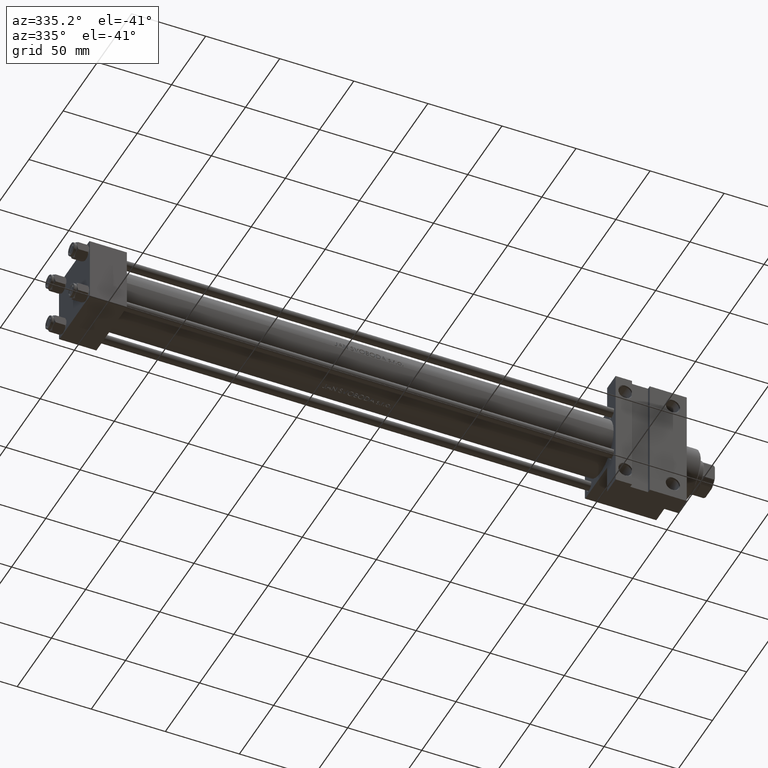
[diagram: clean part render]
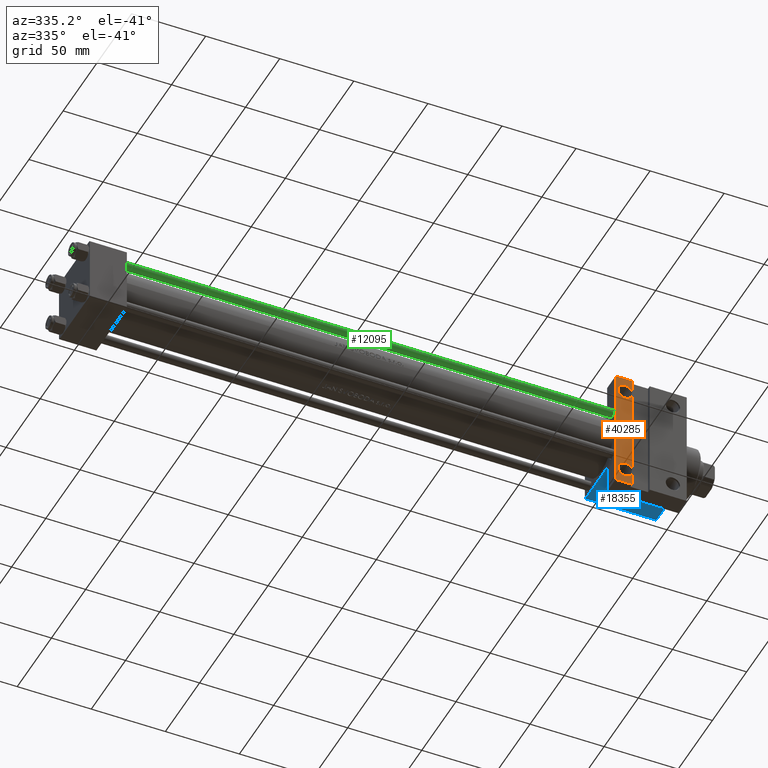
[diagram: same view with three faces highlighted in distinct colors, each labeled with its STEP entity id]
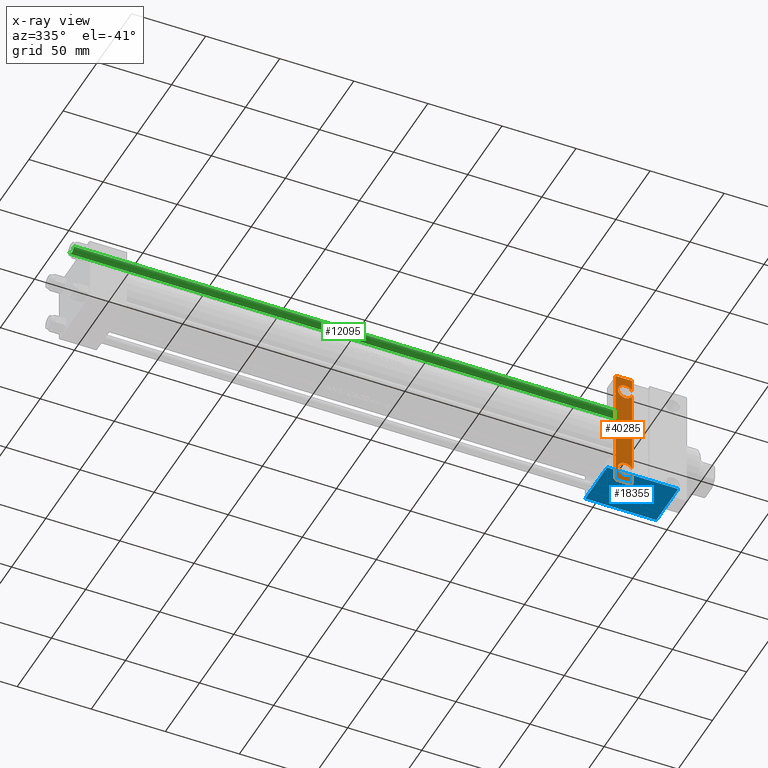
[diagram: x-ray of the same camera — body ghosted, the three highlighted faces saturated]
A machine part, auxiliary view with three faces highlighted in distinct colors.
The next image is the same camera in x-ray (body ghosted, the three faces saturated) — at least one of them is partly hidden behind the body in this view.
Their STEP definitions:

[orange] entity #40285 — the highlighted planar face has unit normal (0, -1, -0).
#344 = DIRECTION ( 'NONE',  ( -0.000000000000000000, -7.709882115452476934E-17, 1.000000000000000000 ) ) ;
#741 = DIRECTION ( 'NONE',  ( 1.000000000000000000, 0.000000000000000000, 0.000000000000000000 ) ) ;
#1150 = CARTESIAN_POINT ( 'NONE',  ( 355.0000000000000568, 22.50000000000000355, -22.49999999999999645 ) ) ;
#1295 = VERTEX_POINT ( 'NONE', #21903 ) ;
#1570 = LINE ( 'NONE', #41395, #13099 ) ;
#1645 = VERTEX_POINT ( 'NONE', #47209 ) ;
#2005 = ORIENTED_EDGE ( 'NONE', *, *, #6339, .F. ) ;
#2875 = CARTESIAN_POINT ( 'NONE',  ( 355.0000000000000568, -42.00000000000003553, -22.50000000000000000 ) ) ;
#4345 = LINE ( 'NONE', #33801, #13120 ) ;
#4589 = VERTEX_POINT ( 'NONE', #41727 ) ;
#4851 = CARTESIAN_POINT ( 'NONE',  ( 361.4999999999999432, 31.50000000000002842, -22.49999999999999645 ) ) ;
#5324 = VERTEX_POINT ( 'NONE', #12697 ) ;
#5479 = LINE ( 'NONE', #1150, #41852 ) ;
#6167 = CARTESIAN_POINT ( 'NONE',  ( 356.5005000000000450, 31.50000000000002842, -22.49999999999999645 ) ) ;
#6339 = EDGE_CURVE ( 'NONE', #28362, #1645, #1570, .T. ) ;
#7105 = EDGE_CURVE ( 'NONE', #4589, #1295, #10592, .T. ) ;
#7221 = VERTEX_POINT ( 'NONE', #16346 ) ;
#7401 = FACE_OUTER_BOUND ( 'NONE', #30299, .T. ) ;
#8372 = DIRECTION ( 'NONE',  ( 0.000000000000000000, -1.000000000000000000, -7.709882115452476934E-17 ) ) ;
#9455 = AXIS2_PLACEMENT_3D ( 'NONE', #12513, #41981, #13483 ) ;
#9530 = EDGE_CURVE ( 'NONE', #30047, #5324, #42513, .T. ) ;
#10109 = DIRECTION ( 'NONE',  ( -1.000000000000000000, 2.891205793294679312E-16, -0.000000000000000000 ) ) ;
#10251 = CIRCLE ( 'NONE', #13325, 4.999499999999878597 ) ;
#10592 = LINE ( 'NONE', #25293, #27720 ) ;
#10672 = EDGE_CURVE ( 'NONE', #33859, #1295, #4345, .T. ) ;
#11432 = DIRECTION ( 'NONE',  ( 0.000000000000000000, 1.000000000000000000, 0.000000000000000000 ) ) ;
#12250 = ORIENTED_EDGE ( 'NONE', *, *, #7105, .F. ) ;
#12335 = DIRECTION ( 'NONE',  ( -0.000000000000000000, -7.709882115452476934E-17, 1.000000000000000000 ) ) ;
#12421 = ORIENTED_EDGE ( 'NONE', *, *, #10672, .T. ) ;
#12513 = CARTESIAN_POINT ( 'NONE',  ( 361.4999999999999432, -31.50000000000002842, -22.50000000000000000 ) ) ;
#12697 = CARTESIAN_POINT ( 'NONE',  ( 366.0000000000000568, -33.67830214846285486, -22.50000000000000000 ) ) ;
#13099 = VECTOR ( 'NONE', #19883, 1000.000000000000000 ) ;
#13120 = VECTOR ( 'NONE', #741, 1000.000000000000000 ) ;
#13325 = AXIS2_PLACEMENT_3D ( 'NONE', #4851, #12335, #23415 ) ;
#13483 = DIRECTION ( 'NONE',  ( 0.000000000000000000, 1.000000000000000000, 0.000000000000000000 ) ) ;
#14465 = EDGE_CURVE ( 'NONE', #7221, #5324, #18588, .T. ) ;
#14977 = CARTESIAN_POINT ( 'NONE',  ( 355.0000000000000568, -42.00000000000003553, -22.50000000000000000 ) ) ;
#15332 = DIRECTION ( 'NONE',  ( 0.000000000000000000, 1.000000000000000000, 0.000000000000000000 ) ) ;
#15633 = ORIENTED_EDGE ( 'NONE', *, *, #17543, .T. ) ;
#16346 = CARTESIAN_POINT ( 'NONE',  ( 356.5005000000000450, -31.50000000000002842, -22.50000000000000000 ) ) ;
#17543 = EDGE_CURVE ( 'NONE', #19259, #1645, #10251, .T. ) ;
#17835 = EDGE_CURVE ( 'NONE', #28362, #7221, #43381, .T. ) ;
#18588 = CIRCLE ( 'NONE', #45574, 4.999499999999878597 ) ;
#18727 = CARTESIAN_POINT ( 'NONE',  ( 403.0000000000000000, 22.50000000000000355, -22.49999999999999645 ) ) ;
#19259 = VERTEX_POINT ( 'NONE', #6167 ) ;
#19532 = CIRCLE ( 'NONE', #23386, 4.999499999999878597 ) ;
#19883 = DIRECTION ( 'NONE',  ( 0.000000000000000000, 1.000000000000000000, 0.000000000000000000 ) ) ;
#19920 = ORIENTED_EDGE ( 'NONE', *, *, #34216, .F. ) ;
#20513 = CARTESIAN_POINT ( 'NONE',  ( 366.0000000000000568, -41.99999999999997868, -22.50000000000000000 ) ) ;
#21663 = CARTESIAN_POINT ( 'NONE',  ( 355.0000000000000000, 41.99999999999996447, -22.50000000000000000 ) ) ;
#21903 = CARTESIAN_POINT ( 'NONE',  ( 366.0000000000000568, 41.99999999999996447, -22.50000000000000000 ) ) ;
#22109 = DIRECTION ( 'NONE',  ( 0.000000000000000000, 7.709882115452476934E-17, -1.000000000000000000 ) ) ;
#23386 = AXIS2_PLACEMENT_3D ( 'NONE', #26612, #344, #11432 ) ;
#23415 = DIRECTION ( 'NONE',  ( 0.000000000000000000, 1.000000000000000000, 0.000000000000000000 ) ) ;
#25293 = CARTESIAN_POINT ( 'NONE',  ( 366.0000000000000568, -41.99999999999997868, -22.50000000000000000 ) ) ;
#25486 = EDGE_CURVE ( 'NONE', #30047, #41016, #39800, .T. ) ;
#25968 = DIRECTION ( 'NONE',  ( 0.000000000000000000, 1.000000000000000000, 7.709882115452476934E-17 ) ) ;
#26612 = CARTESIAN_POINT ( 'NONE',  ( 361.4999999999999432, 31.50000000000002842, -22.49999999999999645 ) ) ;
#27365 = DIRECTION ( 'NONE',  ( -0.000000000000000000, -7.709882115452476934E-17, 1.000000000000000000 ) ) ;
#27537 = DIRECTION ( 'NONE',  ( 0.000000000000000000, 1.000000000000000000, 0.000000000000000000 ) ) ;
#27720 = VECTOR ( 'NONE', #40524, 1000.000000000000000 ) ;
#28362 = VERTEX_POINT ( 'NONE', #32361 ) ;
#30047 = VERTEX_POINT ( 'NONE', #30454 ) ;
#30299 = EDGE_LOOP ( 'NONE', ( #42611, #33589, #19920, #12421, #12250, #31512, #15633, #2005, #35376, #42099 ) ) ;
#30454 = CARTESIAN_POINT ( 'NONE',  ( 366.0000000000000568, -41.99999999999997868, -22.50000000000000000 ) ) ;
#31512 = ORIENTED_EDGE ( 'NONE', *, *, #36216, .T. ) ;
#32361 = CARTESIAN_POINT ( 'NONE',  ( 366.0000000000000568, -29.32169785153720554, -22.50000000000000000 ) ) ;
#33589 = ORIENTED_EDGE ( 'NONE', *, *, #25486, .T. ) ;
#33801 = CARTESIAN_POINT ( 'NONE',  ( 355.0000000000000000, 41.99999999999996447, -22.50000000000000000 ) ) ;
#33859 = VERTEX_POINT ( 'NONE', #21663 ) ;
#34216 = EDGE_CURVE ( 'NONE', #33859, #41016, #5479, .T. ) ;
#35376 = ORIENTED_EDGE ( 'NONE', *, *, #17835, .T. ) ;
#36216 = EDGE_CURVE ( 'NONE', #4589, #19259, #19532, .T. ) ;
#37330 = PLANE ( 'NONE',  #45871 ) ;
#39661 = VECTOR ( 'NONE', #10109, 1000.000000000000000 ) ;
#39800 = LINE ( 'NONE', #2875, #39661 ) ;
#40285 = ADVANCED_FACE ( 'NONE', ( #7401 ), #37330, .T. ) ;
#40524 = DIRECTION ( 'NONE',  ( 0.000000000000000000, 1.000000000000000000, 0.000000000000000000 ) ) ;
#40850 = VECTOR ( 'NONE', #27537, 1000.000000000000000 ) ;
#41016 = VERTEX_POINT ( 'NONE', #14977 ) ;
#41395 = CARTESIAN_POINT ( 'NONE',  ( 366.0000000000000568, -41.99999999999997868, -22.50000000000000000 ) ) ;
#41727 = CARTESIAN_POINT ( 'NONE',  ( 366.0000000000000568, 33.67830214846286196, -22.50000000000000000 ) ) ;
#41852 = VECTOR ( 'NONE', #8372, 1000.000000000000000 ) ;
#41981 = DIRECTION ( 'NONE',  ( -0.000000000000000000, -7.709882115452476934E-17, 1.000000000000000000 ) ) ;
#42099 = ORIENTED_EDGE ( 'NONE', *, *, #14465, .T. ) ;
#42513 = LINE ( 'NONE', #20513, #40850 ) ;
#42611 = ORIENTED_EDGE ( 'NONE', *, *, #9530, .F. ) ;
#43381 = CIRCLE ( 'NONE', #9455, 4.999499999999878597 ) ;
#45490 = CARTESIAN_POINT ( 'NONE',  ( 361.4999999999999432, -31.50000000000002842, -22.50000000000000000 ) ) ;
#45574 = AXIS2_PLACEMENT_3D ( 'NONE', #45490, #27365, #15332 ) ;
#45871 = AXIS2_PLACEMENT_3D ( 'NONE', #18727, #22109, #25968 ) ;
#47209 = CARTESIAN_POINT ( 'NONE',  ( 366.0000000000000568, 29.32169785153719843, -22.50000000000000000 ) ) ;

[blue] entity #18355 — the highlighted planar face has unit normal (0, 0, -1).
#273 = CARTESIAN_POINT ( 'NONE',  ( 355.0000000000000568, 22.50000000000000000, -9.999999999999998224 ) ) ;
#1880 = EDGE_CURVE ( 'NONE', #22691, #40335, #27612, .T. ) ;
#3009 = CARTESIAN_POINT ( 'NONE',  ( 403.0000000000000000, 22.50000000000000355, 21.99999999999994671 ) ) ;
#4454 = DIRECTION ( 'NONE',  ( 0.000000000000000000, -0.000000000000000000, 1.000000000000000000 ) ) ;
#4485 = ORIENTED_EDGE ( 'NONE', *, *, #6749, .T. ) ;
#5316 = ORIENTED_EDGE ( 'NONE', *, *, #1880, .T. ) ;
#6749 = EDGE_CURVE ( 'NONE', #40335, #36146, #44447, .T. ) ;
#8335 = VECTOR ( 'NONE', #39214, 1000.000000000000000 ) ;
#11861 = VECTOR ( 'NONE', #39704, 1000.000000000000000 ) ;
#12783 = EDGE_CURVE ( 'NONE', #43616, #22691, #13870, .T. ) ;
#13870 = LINE ( 'NONE', #3009, #19305 ) ;
#13878 = ORIENTED_EDGE ( 'NONE', *, *, #24524, .F. ) ;
#14101 = DIRECTION ( 'NONE',  ( 1.000000000000000000, 0.000000000000000000, 0.000000000000000000 ) ) ;
#15360 = CARTESIAN_POINT ( 'NONE',  ( 403.0000000000000000, 22.49999999999992184, -9.999999999999998224 ) ) ;
#16031 = CARTESIAN_POINT ( 'NONE',  ( 403.0000000000000000, 22.50000000000000355, 22.50000000000000355 ) ) ;
#17228 = CARTESIAN_POINT ( 'NONE',  ( 403.0000000000000000, 22.50000000000000355, 22.50000000000000355 ) ) ;
#17927 = CARTESIAN_POINT ( 'NONE',  ( 403.0000000000000000, 22.50000000000000355, 21.99999999999994671 ) ) ;
#18355 = ADVANCED_FACE ( 'NONE', ( #24972 ), #22073, .T. ) ;
#19305 = VECTOR ( 'NONE', #14101, 1000.000000000000000 ) ;
#19633 = DIRECTION ( 'NONE',  ( -0.000000000000000000, 1.000000000000000000, 0.000000000000000000 ) ) ;
#19800 = CARTESIAN_POINT ( 'NONE',  ( 355.0000000000000568, 22.50000000000000355, 21.99999999999994671 ) ) ;
#21490 = DIRECTION ( 'NONE',  ( -1.000000000000000000, 1.590163186312073696E-15, -0.000000000000000000 ) ) ;
#22073 = PLANE ( 'NONE',  #41101 ) ;
#22691 = VERTEX_POINT ( 'NONE', #17927 ) ;
#24228 = CARTESIAN_POINT ( 'NONE',  ( 355.0000000000000568, 22.50000000000000355, 22.50000000000000355 ) ) ;
#24524 = EDGE_CURVE ( 'NONE', #43616, #36146, #35122, .T. ) ;
#24972 = FACE_OUTER_BOUND ( 'NONE', #32470, .T. ) ;
#26135 = CARTESIAN_POINT ( 'NONE',  ( 355.0000000000000568, 22.50000000000000355, -9.999999999999984013 ) ) ;
#27612 = LINE ( 'NONE', #17228, #8335 ) ;
#32470 = EDGE_LOOP ( 'NONE', ( #13878, #41110, #5316, #4485 ) ) ;
#35122 = LINE ( 'NONE', #24228, #11861 ) ;
#36146 = VERTEX_POINT ( 'NONE', #26135 ) ;
#39214 = DIRECTION ( 'NONE',  ( 0.000000000000000000, 0.000000000000000000, -1.000000000000000000 ) ) ;
#39704 = DIRECTION ( 'NONE',  ( 0.000000000000000000, 0.000000000000000000, -1.000000000000000000 ) ) ;
#40335 = VERTEX_POINT ( 'NONE', #15360 ) ;
#41101 = AXIS2_PLACEMENT_3D ( 'NONE', #16031, #19633, #4454 ) ;
#41110 = ORIENTED_EDGE ( 'NONE', *, *, #12783, .T. ) ;
#43616 = VERTEX_POINT ( 'NONE', #19800 ) ;
#44447 = LINE ( 'NONE', #273, #46233 ) ;
#46233 = VECTOR ( 'NONE', #21490, 1000.000000000000000 ) ;

[green] entity #12095 — the highlighted cylindrical surface (edge-blend (fillet) strip) has radius 3 mm, axis along (-1, 0, 0).
#1045 = LINE ( 'NONE', #31203, #43115 ) ;
#1206 = CARTESIAN_POINT ( 'NONE',  ( 3.000000000000000444, 3.673940397442060361E-16, 378.0000000000000000 ) ) ;
#2967 = DIRECTION ( 'NONE',  ( -0.000000000000000000, -0.000000000000000000, 1.000000000000000000 ) ) ;
#3103 = DIRECTION ( 'NONE',  ( 1.000000000000000000, 0.000000000000000000, 0.000000000000000000 ) ) ;
#3206 = DIRECTION ( 'NONE',  ( 1.000000000000000000, 0.000000000000000000, 0.000000000000000000 ) ) ;
#3504 = AXIS2_PLACEMENT_3D ( 'NONE', #32177, #2967, #3206 ) ;
#4468 = ORIENTED_EDGE ( 'NONE', *, *, #5028, .F. ) ;
#4643 = CARTESIAN_POINT ( 'NONE',  ( 0.000000000000000000, 0.000000000000000000, 378.0000000000000000 ) ) ;
#5028 = EDGE_CURVE ( 'NONE', #35138, #30377, #1045, .T. ) ;
#12095 = ADVANCED_FACE ( 'NONE', ( #44737 ), #18648, .T. ) ;
#15485 = ORIENTED_EDGE ( 'NONE', *, *, #33133, .T. ) ;
#15752 = DIRECTION ( 'NONE',  ( -0.000000000000000000, -0.000000000000000000, -1.000000000000000000 ) ) ;
#15761 = DIRECTION ( 'NONE',  ( -0.000000000000000000, -0.000000000000000000, -1.000000000000000000 ) ) ;
#16851 = CARTESIAN_POINT ( 'NONE',  ( 0.000000000000000000, 0.000000000000000000, 377.5000000000000000 ) ) ;
#18648 = CYLINDRICAL_SURFACE ( 'NONE', #24673, 3.000000000000000444 ) ;
#20149 = CARTESIAN_POINT ( 'NONE',  ( -3.000000000000000444, 0.000000000000000000, 0.5000000000000004441 ) ) ;
#20284 = AXIS2_PLACEMENT_3D ( 'NONE', #16851, #31590, #3103 ) ;
#20949 = EDGE_CURVE ( 'NONE', #33168, #39122, #45843, .T. ) ;
#21506 = ORIENTED_EDGE ( 'NONE', *, *, #28032, .T. ) ;
#24507 = CARTESIAN_POINT ( 'NONE',  ( -3.000000000000000444, 0.000000000000000000, 377.5000000000000000 ) ) ;
#24673 = AXIS2_PLACEMENT_3D ( 'NONE', #4643, #15752, #44965 ) ;
#27645 = EDGE_LOOP ( 'NONE', ( #15485, #38043, #21506, #4468 ) ) ;
#28032 = EDGE_CURVE ( 'NONE', #39122, #30377, #36660, .T. ) ;
#30377 = VERTEX_POINT ( 'NONE', #20149 ) ;
#31203 = CARTESIAN_POINT ( 'NONE',  ( -3.000000000000000444, 0.000000000000000000, 378.0000000000000000 ) ) ;
#31590 = DIRECTION ( 'NONE',  ( 0.000000000000000000, 0.000000000000000000, -1.000000000000000000 ) ) ;
#32177 = CARTESIAN_POINT ( 'NONE',  ( 0.000000000000000000, 0.000000000000000000, 0.5000000000000004441 ) ) ;
#33133 = EDGE_CURVE ( 'NONE', #35138, #33168, #44992, .T. ) ;
#33168 = VERTEX_POINT ( 'NONE', #33499 ) ;
#33499 = CARTESIAN_POINT ( 'NONE',  ( 3.000000000000000444, 3.673940397442060361E-16, 377.5000000000000000 ) ) ;
#34269 = DIRECTION ( 'NONE',  ( -0.000000000000000000, -0.000000000000000000, -1.000000000000000000 ) ) ;
#35138 = VERTEX_POINT ( 'NONE', #24507 ) ;
#36660 = CIRCLE ( 'NONE', #3504, 3.000000000000000444 ) ;
#38043 = ORIENTED_EDGE ( 'NONE', *, *, #20949, .T. ) ;
#39122 = VERTEX_POINT ( 'NONE', #40290 ) ;
#40290 = CARTESIAN_POINT ( 'NONE',  ( 3.000000000000000444, 3.673940397442060361E-16, 0.5000000000000004441 ) ) ;
#41971 = VECTOR ( 'NONE', #34269, 1000.000000000000000 ) ;
#43115 = VECTOR ( 'NONE', #15761, 1000.000000000000000 ) ;
#44737 = FACE_OUTER_BOUND ( 'NONE', #27645, .T. ) ;
#44965 = DIRECTION ( 'NONE',  ( -1.000000000000000000, 0.000000000000000000, 0.000000000000000000 ) ) ;
#44992 = CIRCLE ( 'NONE', #20284, 3.000000000000000444 ) ;
#45843 = LINE ( 'NONE', #1206, #41971 ) ;